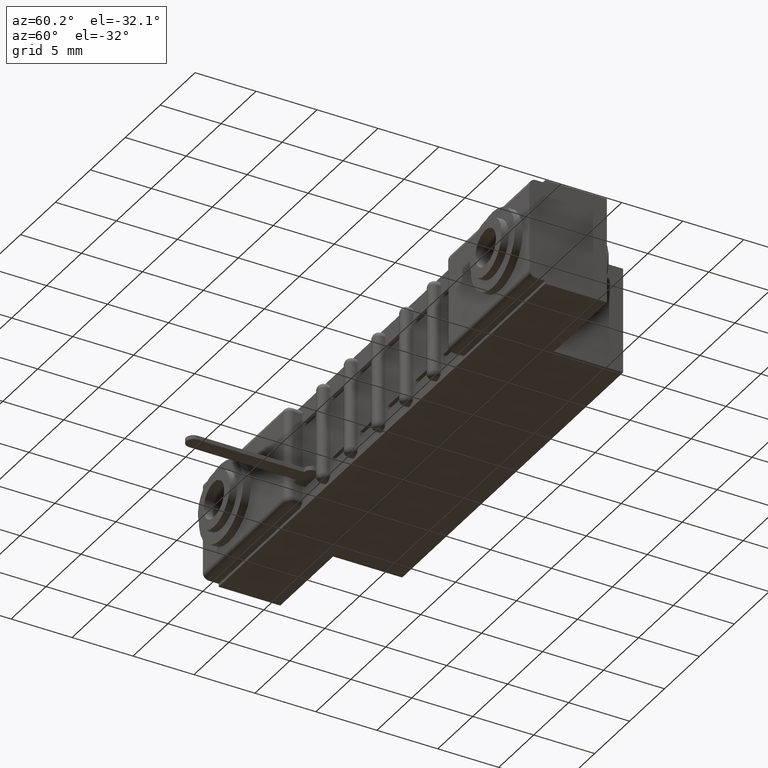
[diagram: clean part render]
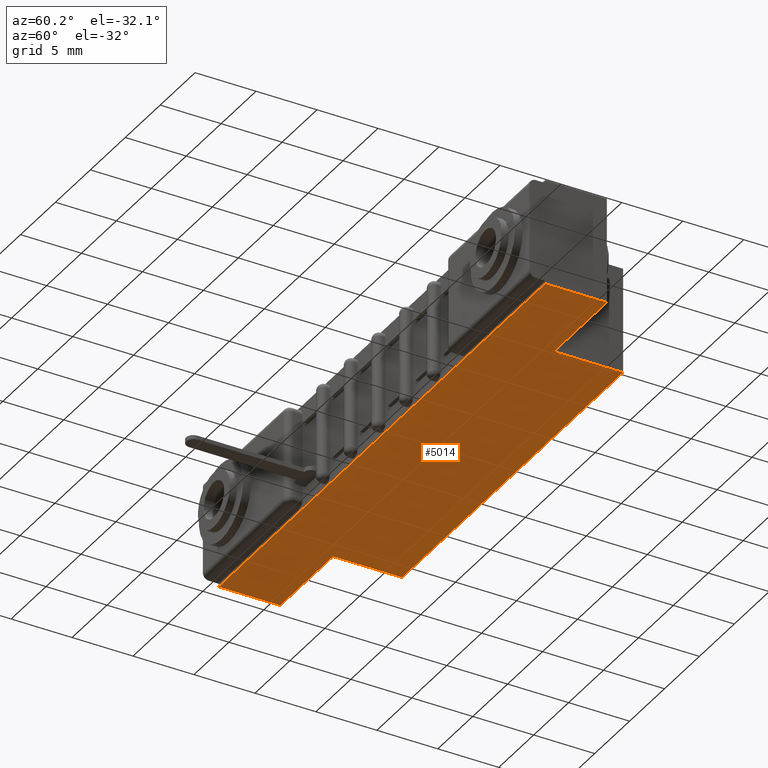
[diagram: same view with one face highlighted and labeled with its STEP entity id]
A machine part, auxiliary view. The second image highlights one B-rep face of the part: STEP entity #5014.
In plain terms, the highlighted planar face has unit normal (0, 0, 1).
Its self-contained STEP definition (entity closure, byte-faithful):
#65 = ORIENTED_EDGE ( 'NONE', *, *, #8923, .F. ) ;
#107 = ORIENTED_EDGE ( 'NONE', *, *, #8922, .F. ) ;
#126 = ORIENTED_EDGE ( 'NONE', *, *, #8920, .T. ) ;
#304 = ORIENTED_EDGE ( 'NONE', *, *, #8909, .F. ) ;
#342 = ORIENTED_EDGE ( 'NONE', *, *, #8908, .F. ) ;
#352 = ORIENTED_EDGE ( 'NONE', *, *, #8907, .F. ) ;
#380 = ORIENTED_EDGE ( 'NONE', *, *, #8894, .T. ) ;
#457 = CARTESIAN_POINT ( 'NONE',  ( 1.842000000000000700, 0.05099999999999999700, -0.3430000000000000300 ) ) ;
#903 = CARTESIAN_POINT ( 'NONE',  ( 1.544000000000000700, 0.2499999999999999700, -0.3430000000000000300 ) ) ;
#1371 = LINE ( 'NONE', #8504, #7783 ) ;
#1893 = CARTESIAN_POINT ( 'NONE',  ( 0.0000000000000000000, 0.2499999999999999700, -0.3430000000000000300 ) ) ;
#1919 = VERTEX_POINT ( 'NONE', #457 ) ;
#1924 = CARTESIAN_POINT ( 'NONE',  ( 0.0000000000000000000, 0.4729999999999999800, -0.3430000000000000300 ) ) ;
#1965 = DIRECTION ( 'NONE',  ( -1.000000000000000000, 0.0000000000000000000, 0.0000000000000000000 ) ) ;
#1975 = LINE ( 'NONE', #8470, #2504 ) ;
#2249 = LINE ( 'NONE', #9218, #6399 ) ;
#2504 = VECTOR ( 'NONE', #9243, 39.37007874015748100 ) ;
#2625 = PLANE ( 'NONE',  #2778 ) ;
#2753 = DIRECTION ( 'NONE',  ( 1.000000000000000000, 0.0000000000000000000, 0.0000000000000000000 ) ) ;
#2778 = AXIS2_PLACEMENT_3D ( 'NONE', #5296, #5197, #5091 ) ;
#3059 = VERTEX_POINT ( 'NONE', #10025 ) ;
#3443 = VECTOR ( 'NONE', #1965, 39.37007874015748100 ) ;
#3585 = DIRECTION ( 'NONE',  ( -1.000000000000000000, -0.0000000000000000000, -0.0000000000000000000 ) ) ;
#3682 = FACE_OUTER_BOUND ( 'NONE', #9636, .T. ) ;
#3689 = VECTOR ( 'NONE', #6923, 39.37007874015748100 ) ;
#3957 = VECTOR ( 'NONE', #3585, 39.37007874015748100 ) ;
#4331 = VERTEX_POINT ( 'NONE', #8179 ) ;
#4454 = CARTESIAN_POINT ( 'NONE',  ( 0.2979999999999999300, 0.4729999999999999800, -0.3430000000000000300 ) ) ;
#4494 = DIRECTION ( 'NONE',  ( -1.000000000000000000, 0.0000000000000000000, 0.0000000000000000000 ) ) ;
#5014 = ADVANCED_FACE ( 'NONE', ( #3682 ), #2625, .F. ) ;
#5055 = VERTEX_POINT ( 'NONE', #903 ) ;
#5091 = DIRECTION ( 'NONE',  ( 1.000000000000000000, 0.0000000000000000000, -0.0000000000000000000 ) ) ;
#5197 = DIRECTION ( 'NONE',  ( 0.0000000000000000000, 0.0000000000000000000, 1.000000000000000000 ) ) ;
#5296 = CARTESIAN_POINT ( 'NONE',  ( 0.0000000000000000000, 0.4729999999999999800, -0.3430000000000000300 ) ) ;
#5574 = VERTEX_POINT ( 'NONE', #7398 ) ;
#5885 = LINE ( 'NONE', #7665, #3689 ) ;
#6158 = VECTOR ( 'NONE', #2753, 39.37007874015748100 ) ;
#6290 = VERTEX_POINT ( 'NONE', #10221 ) ;
#6399 = VECTOR ( 'NONE', #9850, 39.37007874015748100 ) ;
#6853 = CARTESIAN_POINT ( 'NONE',  ( 0.4730000000000003600, 0.05099999999999999700, -0.3430000000000002500 ) ) ;
#6864 = CARTESIAN_POINT ( 'NONE',  ( 0.0000000000000000000, 0.2499999999999999700, -0.3430000000000000300 ) ) ;
#6923 = DIRECTION ( 'NONE',  ( -0.0000000000000000000, 1.000000000000000000, -0.0000000000000000000 ) ) ;
#6956 = CARTESIAN_POINT ( 'NONE',  ( 0.0000000000000000000, 0.2499999999999999700, -0.3430000000000000300 ) ) ;
#7398 = CARTESIAN_POINT ( 'NONE',  ( 0.2979999999999999300, 0.2499999999999999700, -0.3430000000000000300 ) ) ;
#7665 = CARTESIAN_POINT ( 'NONE',  ( 0.2979999999999999300, 0.2499999999999999700, -0.3430000000000000300 ) ) ;
#7783 = VECTOR ( 'NONE', #9271, 39.37007874015748100 ) ;
#7960 = VERTEX_POINT ( 'NONE', #4454 ) ;
#8030 = LINE ( 'NONE', #1924, #3957 ) ;
#8179 = CARTESIAN_POINT ( 'NONE',  ( 1.842000000000000700, 0.2499999999999999700, -0.3430000000000000300 ) ) ;
#8294 = LINE ( 'NONE', #6853, #6158 ) ;
#8470 = CARTESIAN_POINT ( 'NONE',  ( 0.0000000000000000000, 0.4729999999999999800, -0.3430000000000000300 ) ) ;
#8504 = CARTESIAN_POINT ( 'NONE',  ( 1.544000000000000700, 0.2499999999999999700, -0.3430000000000000300 ) ) ;
#8573 = VERTEX_POINT ( 'NONE', #6864 ) ;
#8894 = EDGE_CURVE ( 'NONE', #4331, #1919, #2249, .T. ) ;
#8907 = EDGE_CURVE ( 'NONE', #3059, #1919, #8294, .T. ) ;
#8908 = EDGE_CURVE ( 'NONE', #8573, #3059, #1975, .T. ) ;
#8909 = EDGE_CURVE ( 'NONE', #5574, #8573, #10066, .T. ) ;
#8920 = EDGE_CURVE ( 'NONE', #5574, #7960, #5885, .T. ) ;
#8922 = EDGE_CURVE ( 'NONE', #6290, #7960, #8030, .T. ) ;
#8923 = EDGE_CURVE ( 'NONE', #5055, #6290, #1371, .T. ) ;
#8934 = EDGE_CURVE ( 'NONE', #4331, #5055, #9762, .T. ) ;
#9218 = CARTESIAN_POINT ( 'NONE',  ( 1.842000000000000700, 0.4729999999999999800, -0.3430000000000000300 ) ) ;
#9243 = DIRECTION ( 'NONE',  ( -0.0000000000000000000, -1.000000000000000000, -0.0000000000000000000 ) ) ;
#9271 = DIRECTION ( 'NONE',  ( -0.0000000000000000000, 1.000000000000000000, -0.0000000000000000000 ) ) ;
#9636 = EDGE_LOOP ( 'NONE', ( #380, #352, #342, #304, #126, #107, #65, #9826 ) ) ;
#9762 = LINE ( 'NONE', #6956, #3443 ) ;
#9826 = ORIENTED_EDGE ( 'NONE', *, *, #8934, .F. ) ;
#9850 = DIRECTION ( 'NONE',  ( -0.0000000000000000000, -1.000000000000000000, -0.0000000000000000000 ) ) ;
#9918 = VECTOR ( 'NONE', #4494, 39.37007874015748100 ) ;
#10025 = CARTESIAN_POINT ( 'NONE',  ( 0.0000000000000000000, 0.05099999999999999700, -0.3430000000000000300 ) ) ;
#10066 = LINE ( 'NONE', #1893, #9918 ) ;
#10221 = CARTESIAN_POINT ( 'NONE',  ( 1.544000000000000700, 0.4729999999999999800, -0.3430000000000000300 ) ) ;